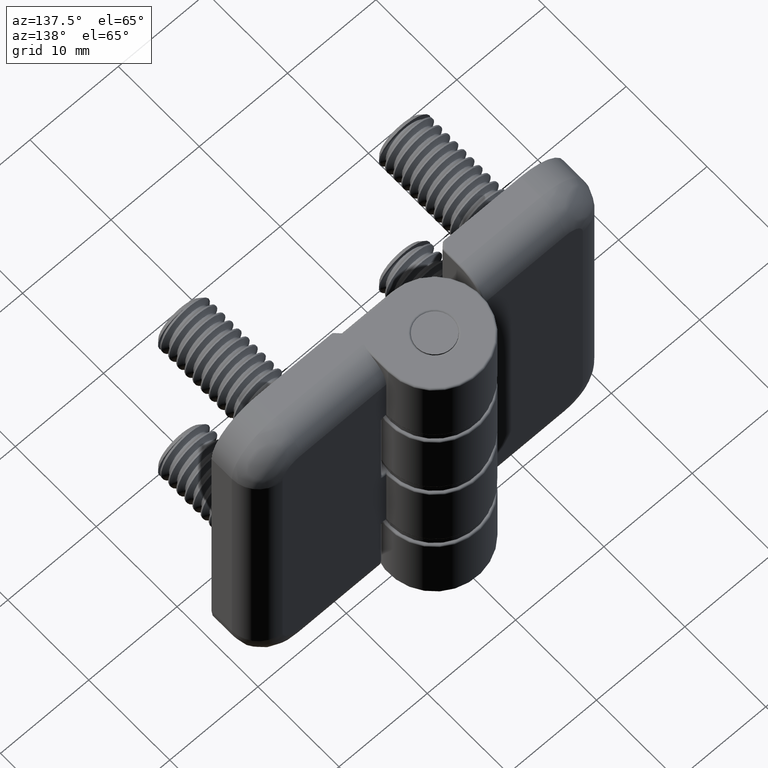
[diagram: clean part render]
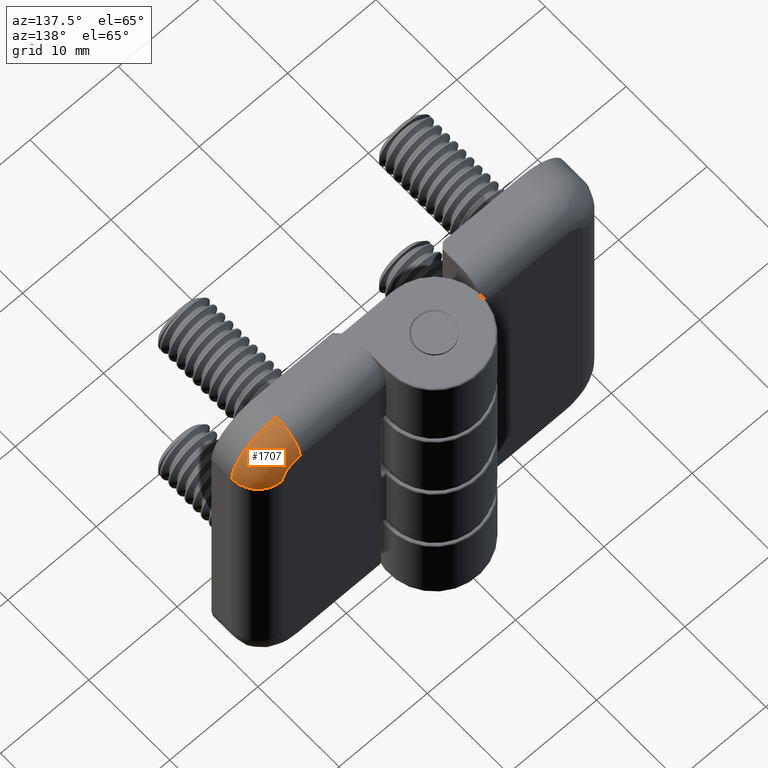
[diagram: same view with one face highlighted and labeled with its STEP entity id]
A machine part, auxiliary view. The second image highlights one B-rep face of the part: STEP entity #1707.
In plain terms, the highlighted face is a freeform B-spline surface patch.
Its self-contained STEP definition (entity closure, byte-faithful):
#50=(
BOUNDED_SURFACE()
B_SPLINE_SURFACE(2,2,((#23127,#23128,#23129),(#23130,#23131,#23132),(#23133,
#23134,#23135)),.UNSPECIFIED.,.F.,.F.,.F.)
B_SPLINE_SURFACE_WITH_KNOTS((3,3),(3,3),(1.01034405243754E-12,1.57079632679713),
(-4.11697290677763E-12,1.57079632679887),.UNSPECIFIED.)
GEOMETRIC_REPRESENTATION_ITEM()
RATIONAL_B_SPLINE_SURFACE(((1.,0.707106781183688,1.),(0.707106781186116,
0.499999999997673,0.707106781186116),(1.,0.707106781183688,1.)))
REPRESENTATION_ITEM('')
SURFACE()
);
#364=FACE_OUTER_BOUND('',#478,.T.);
#478=EDGE_LOOP('',(#1521,#1522,#1523,#1524));
#526=CIRCLE('',#1769,2.);
#592=CIRCLE('',#1902,5.);
#593=CIRCLE('',#1903,3.);
#594=CIRCLE('',#1904,3.);
#751=VERTEX_POINT('',#22841);
#752=VERTEX_POINT('',#22843);
#793=VERTEX_POINT('',#22988);
#830=VERTEX_POINT('',#23136);
#938=EDGE_CURVE('',#752,#751,#526,.T.);
#1069=EDGE_CURVE('',#830,#793,#592,.F.);
#1070=EDGE_CURVE('',#752,#830,#593,.T.);
#1071=EDGE_CURVE('',#793,#751,#594,.T.);
#1521=ORIENTED_EDGE('',*,*,#1069,.F.);
#1522=ORIENTED_EDGE('',*,*,#1070,.F.);
#1523=ORIENTED_EDGE('',*,*,#938,.T.);
#1524=ORIENTED_EDGE('',*,*,#1071,.F.);
#1707=ADVANCED_FACE('',(#364),#50,.F.);
#1769=AXIS2_PLACEMENT_3D('',#22844,#2034,#2035);
#1902=AXIS2_PLACEMENT_3D('',#23137,#2357,#2358);
#1903=AXIS2_PLACEMENT_3D('',#23138,#2359,#2360);
#1904=AXIS2_PLACEMENT_3D('',#23139,#2361,#2362);
#2034=DIRECTION('center_axis',(-1.64651719753731E-17,-1.,0.));
#2035=DIRECTION('ref_axis',(0.707106781186548,-1.1642634757189E-17,0.707106781186548));
#2357=DIRECTION('center_axis',(0.,1.,0.));
#2358=DIRECTION('ref_axis',(1.,0.,0.));
#2359=DIRECTION('center_axis',(0.,0.,-1.));
#2360=DIRECTION('ref_axis',(0.,1.,0.));
#2361=DIRECTION('center_axis',(-1.,0.,0.));
#2362=DIRECTION('ref_axis',(0.,0.,1.));
#22841=CARTESIAN_POINT('',(15.,-0.249999999999999,17.));
#22843=CARTESIAN_POINT('',(17.,-0.249999999999999,15.));
#22844=CARTESIAN_POINT('Origin',(15.,-0.249999999999999,15.));
#22988=CARTESIAN_POINT('',(15.,-3.25,20.));
#23127=CARTESIAN_POINT('Ctrl Pts',(15.0000000000048,-3.25,20.0000000000001));
#23128=CARTESIAN_POINT('Ctrl Pts',(20.0000000000205,-3.25000000000564,20.0000000000203));
#23129=CARTESIAN_POINT('Ctrl Pts',(20.0000000000003,-3.25000000000016,15.0000000000047));
#23130=CARTESIAN_POINT('Ctrl Pts',(15.0000000000082,-0.249999999996153,
20.0000000000003));
#23131=CARTESIAN_POINT('Ctrl Pts',(20.0000000000208,-0.250000000001798,
20.0000000000205));
#23132=CARTESIAN_POINT('Ctrl Pts',(20.0000000000006,-0.249999999996318,
15.0000000000079));
#23133=CARTESIAN_POINT('Ctrl Pts',(15.0000000000082,-0.249999999999556,
16.9999999999965));
#23134=CARTESIAN_POINT('Ctrl Pts',(17.0000000000049,-0.250000000001813,
17.0000000000046));
#23135=CARTESIAN_POINT('Ctrl Pts',(16.9999999999968,-0.249999999999622,
15.0000000000079));
#23136=CARTESIAN_POINT('',(20.,-3.25,15.));
#23137=CARTESIAN_POINT('Origin',(15.,-3.25,15.));
#23138=CARTESIAN_POINT('Origin',(17.,-3.25,15.));
#23139=CARTESIAN_POINT('Origin',(15.,-3.25,17.));